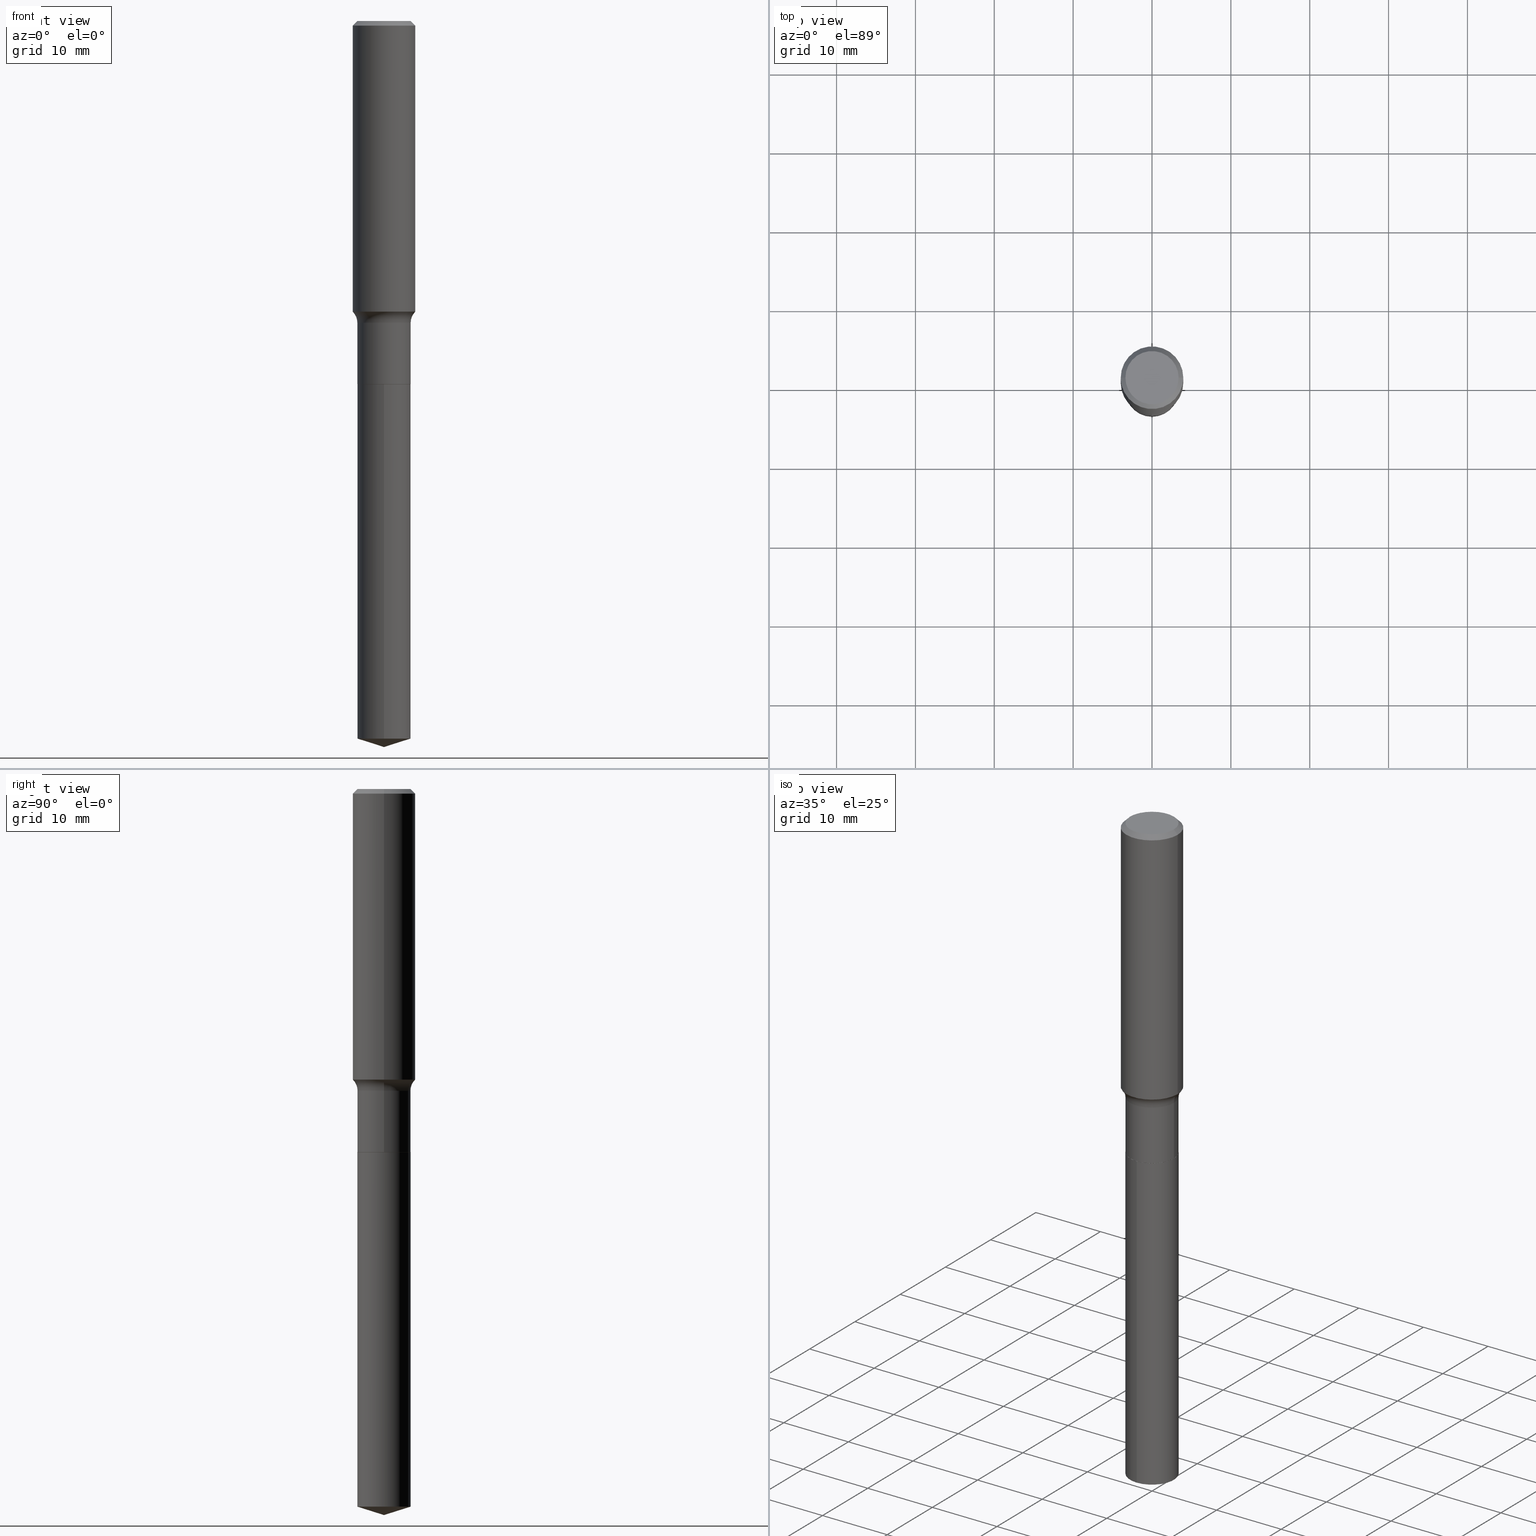
[diagram: canonical four-view strip — front | top / right | iso, engineering-drawing reading convention]
A machine part, canonical four-view strip (front | top / right | iso — engineering-drawing reading convention). The complete STEP part file that produces these views, byte-faithful:
ISO-10303-21;
HEADER;
FILE_DESCRIPTION (( 'STEP AP203' ),
    '1' );
FILE_NAME ('52342.STEP',
    '2024-04-19T13:47:51',
    ( '' ),
    ( '' ),
    'SwSTEP 2.0',
    'SolidWorks 2023',
    '' );
FILE_SCHEMA (( 'CONFIG_CONTROL_DESIGN' ));
ENDSEC;

DATA;
#1 = FACE_OUTER_BOUND ( 'NONE', #3, .T. ) ;
#2 = DIRECTION ( 'NONE',  ( 6.982962677686265922E-15, 1.000000000000000000, -3.491482212722760991E-15 ) ) ;
#3 = EDGE_LOOP ( 'NONE', ( #33, #483, #138 ) ) ;
#4 = DIRECTION ( 'NONE',  ( 7.105427357601001859E-15, 1.000000000000000000, -3.491481338843145583E-15 ) ) ;
#5 = PLANE ( 'NONE',  #395 ) ;
#6 = CONICAL_SURFACE ( 'NONE', #287, 0.1325000000000000067, 0.7853981633975336552 ) ;
#7 = VECTOR ( 'NONE', #278, 39.37007874015748143 ) ;
#8 = CYLINDRICAL_SURFACE ( 'NONE', #378, 0.1329999999999999793 ) ;
#9 = DIRECTION ( 'NONE',  ( 1.000000000000000000, -6.982962677686266711E-15, 4.876176775795935232E-29 ) ) ;
#10 = EDGE_CURVE ( 'NONE', #94, #84, #50, .T. ) ;
#11 = CARTESIAN_POINT ( 'NONE',  ( 0.1329999999999999793, -9.287340361322734252E-16, 6.485315111808593988E-30 ) ) ;
#12 = CLOSED_SHELL ( 'NONE', ( #21, #137, #294, #267, #486, #376, #385, #414, #453, #247, #280, #254 ) ) ;
#13 = DIRECTION ( 'NONE',  ( -2.445468806185136597E-29, 3.491481338843145583E-15, 1.000000000000000000 ) ) ;
#14 = APPROVAL_PERSON_ORGANIZATION ( #36, #44, #25 ) ;
#15 = EDGE_CURVE ( 'NONE', #452, #218, #142, .T. ) ;
#16 = LINE ( 'NONE', #57, #488 ) ;
#17 = APPROVAL_STATUS ( 'not_yet_approved' ) ;
#18 = MECHANICAL_CONTEXT ( 'NONE', #448, 'mechanical' ) ;
#19 = VECTOR ( 'NONE', #382, 39.37007874015748143 ) ;
#20 = VERTEX_POINT ( 'NONE', #471 ) ;
#21 = ADVANCED_FACE ( 'NONE', ( #437 ), #6, .T. ) ;
#22 = ORIENTED_EDGE ( 'NONE', *, *, #183, .T. ) ;
#23 = CARTESIAN_POINT ( 'NONE',  ( 4.433390398733034659E-29, -6.329706519188739286E-15, -1.812900000000000178 ) ) ;
#24 = ORIENTED_EDGE ( 'NONE', *, *, #470, .F. ) ;
#25 = APPROVAL_ROLE ( '' ) ;
#26 = TOROIDAL_SURFACE ( 'NONE', #464, 0.2109999999999999376, 0.07800000000000002764 ) ;
#27 = ORIENTED_EDGE ( 'NONE', *, *, #131, .T. ) ;
#28 = APPLICATION_PROTOCOL_DEFINITION ( 'international standard', 'config_control_design', 1994, #290 ) ;
#29 = EDGE_CURVE ( 'NONE', #145, #20, #58, .T. ) ;
#30 = DIRECTION ( 'NONE',  ( -2.445468195958262557E-29, 3.491482212722760991E-15, 1.000000000000000000 ) ) ;
#31 = SECURITY_CLASSIFICATION_LEVEL ( 'unclassified' ) ;
#32 = DIRECTION ( 'NONE',  ( -2.445468195958262557E-29, 3.491482212722760991E-15, 1.000000000000000000 ) ) ;
#33 = ORIENTED_EDGE ( 'NONE', *, *, #107, .F. ) ;
#34 = CARTESIAN_POINT ( 'NONE',  ( 8.864824442310846764E-29, -1.265661985260730143E-14, -3.625000000000000444 ) ) ;
#35 = FACE_OUTER_BOUND ( 'NONE', #468, .T. ) ;
#36 = PERSON_AND_ORGANIZATION ( #368, #122 ) ;
#37 = CC_DESIGN_PERSON_AND_ORGANIZATION_ASSIGNMENT ( #422, #412, ( #253 ) ) ;
#38 = CYLINDRICAL_SURFACE ( 'NONE', #119, 0.1562500000000000833 ) ;
#39 = VECTOR ( 'NONE', #149, 39.37007874015748143 ) ;
#40 = DIRECTION ( 'NONE',  ( -2.445468806185136597E-29, 3.491481338843145583E-15, 1.000000000000000000 ) ) ;
#41 = CIRCLE ( 'NONE', #341, 0.07800000000000002764 ) ;
#42 = CIRCLE ( 'NONE', #297, 0.1329999999999999793 ) ;
#43 = LOCAL_TIME ( 9, 47, 51.00000000000000000, #257 ) ;
#44 = APPROVAL ( #17, 'UNSPECIFIED' ) ;
#45 = LINE ( 'NONE', #352, #281 ) ;
#46 = CARTESIAN_POINT ( 'NONE',  ( 4.433390398733034659E-29, -6.329706519188739286E-15, -1.812900000000000178 ) ) ;
#47 = CARTESIAN_POINT ( 'NONE',  ( 8.762273246292118594E-29, -1.251020704182614589E-14, -3.583065261079096064 ) ) ;
#48 = ORIENTED_EDGE ( 'NONE', *, *, #131, .F. ) ;
#49 = DIRECTION ( 'NONE',  ( -6.982962677686265922E-15, -1.000000000000000000, 4.108042095735734288E-15 ) ) ;
#50 = CIRCLE ( 'NONE', #243, 0.1329999999999999793 ) ;
#51 = EDGE_LOOP ( 'NONE', ( #27, #64, #237, #383 ) ) ;
#52 = AXIS2_PLACEMENT_3D ( 'NONE', #46, #13, #322 ) ;
#53 = EDGE_CURVE ( 'NONE', #475, #293, #332, .T. ) ;
#54 = VECTOR ( 'NONE', #239, 39.37007874015748143 ) ;
#55 = APPROVAL_PERSON_ORGANIZATION ( #198, #89, #455 ) ;
#56 = DATE_AND_TIME ( #397, #43 ) ;
#57 = CARTESIAN_POINT ( 'NONE',  ( -0.1562500000000000000, 1.009256324509342545E-15, -0.02343750000000014225 ) ) ;
#58 = CIRCLE ( 'NONE', #52, 0.1325000000000000067 ) ;
#59 = CIRCLE ( 'NONE', #479, 0.1562500000000000000 ) ;
#60 = SHAPE_DEFINITION_REPRESENTATION ( #211, #284 ) ;
#61 = EDGE_CURVE ( 'NONE', #179, #308, #473, .T. ) ;
#62 = ORIENTED_EDGE ( 'NONE', *, *, #219, .T. ) ;
#63 = CARTESIAN_POINT ( 'NONE',  ( -0.1328125000000000000, 9.683405275697749214E-16, 3.252968060228529177E-18 ) ) ;
#64 = ORIENTED_EDGE ( 'NONE', *, *, #329, .T. ) ;
#65 =( NAMED_UNIT ( * ) SI_UNIT ( $, .STERADIAN. ) SOLID_ANGLE_UNIT ( ) );
#66 = DIRECTION ( 'NONE',  ( 1.000000000000000000, -6.982962677686267499E-15, 4.876176775795936353E-29 ) ) ;
#67 = VERTEX_POINT ( 'NONE', #185 ) ;
#68 = EDGE_CURVE ( 'NONE', #266, #264, #416, .T. ) ;
#69 = AXIS2_PLACEMENT_3D ( 'NONE', #76, #30, #450 ) ;
#70 = DIRECTION ( 'NONE',  ( -2.445468806185136877E-29, 3.491481338843145188E-15, 1.000000000000000000 ) ) ;
#71 = EDGE_LOOP ( 'NONE', ( #193, #302, #74, #163 ) ) ;
#72 = DATE_TIME_ROLE ( 'creation_date' ) ;
#73 = DIRECTION ( 'NONE',  ( 1.000000000000000000, -6.982962677686269866E-15, 0.000000000000000000 ) ) ;
#74 = ORIENTED_EDGE ( 'NONE', *, *, #358, .F. ) ;
#75 = COORDINATED_UNIVERSAL_TIME_OFFSET ( 5, 0, .BEHIND. ) ;
#76 = CARTESIAN_POINT ( 'NONE',  ( -8.741345211479866169E-28, 1.248033081978907119E-13, 35.74507874015748143 ) ) ;
#77 = VECTOR ( 'NONE', #489, 39.37007874015748143 ) ;
#78 = CARTESIAN_POINT ( 'NONE',  ( -0.1329999999999999793, 9.450218385609331005E-16, -6.542183670039024169E-30 ) ) ;
#79 = EDGE_CURVE ( 'NONE', #179, #84, #224, .T. ) ;
#80 = LOCAL_TIME ( 9, 47, 51.00000000000000000, #178 ) ;
#81 = VERTEX_POINT ( 'NONE', #342 ) ;
#82 = DIRECTION ( 'NONE',  ( -2.445468195958262557E-29, 3.491482212722760991E-15, 1.000000000000000000 ) ) ;
#83 = DIRECTION ( 'NONE',  ( 1.000000000000000000, -6.982962677686266711E-15, 4.876176775795935232E-29 ) ) ;
#84 = VERTEX_POINT ( 'NONE', #310 ) ;
#85 = PERSON_AND_ORGANIZATION ( #368, #122 ) ;
#86 = LINE ( 'NONE', #250, #54 ) ;
#87 = DIRECTION ( 'NONE',  ( 2.445468195958262277E-29, -3.491482212722760991E-15, -1.000000000000000000 ) ) ;
#88 = EDGE_LOOP ( 'NONE', ( #428, #491, #114, #156 ) ) ;
#89 = APPROVAL ( #309, 'UNSPECIFIED' ) ;
#90 = CARTESIAN_POINT ( 'NONE',  ( -9.287340361322290517E-16, -0.1330000000000063354, -1.812899999999999734 ) ) ;
#91 = CIRCLE ( 'NONE', #363, 0.1330000000000000071 ) ;
#92 = LINE ( 'NONE', #317, #19 ) ;
#93 = CARTESIAN_POINT ( 'NONE',  ( 0.1329999999999999793, -7.256694814651591602E-15, -1.812400000000000233 ) ) ;
#94 = VERTEX_POINT ( 'NONE', #303 ) ;
#95 = PRODUCT ( '52342', '52342', '', ( #18 ) ) ;
#96 = CIRCLE ( 'NONE', #151, 0.07800000000000002764 ) ;
#97 = LOCAL_TIME ( 9, 47, 51.00000000000000000, #75 ) ;
#98 = DIRECTION ( 'NONE',  ( -6.982962677686265922E-15, -1.000000000000000000, 4.108042095735734288E-15 ) ) ;
#99 = PERSON_AND_ORGANIZATION ( #368, #122 ) ;
#100 = EDGE_LOOP ( 'NONE', ( #225, #252, #340, #216 ) ) ;
#101 = EDGE_CURVE ( 'NONE', #81, #67, #230, .T. ) ;
#102 = VERTEX_POINT ( 'NONE', #270 ) ;
#103 = AXIS2_PLACEMENT_3D ( 'NONE', #133, #324, #206 ) ;
#104 = CONICAL_SURFACE ( 'NONE', #296, 0.1562500000000000000, 0.7853981633974452814 ) ;
#105 = DIRECTION ( 'NONE',  ( -2.445468195958262557E-29, 3.491482212722760991E-15, 1.000000000000000000 ) ) ;
#106 = ORIENTED_EDGE ( 'NONE', *, *, #398, .T. ) ;
#107 = EDGE_CURVE ( 'NONE', #266, #447, #381, .T. ) ;
#108 = ORIENTED_EDGE ( 'NONE', *, *, #438, .F. ) ;
#109 = CARTESIAN_POINT ( 'NONE',  ( -0.1325000000000000067, -5.385588167132495686E-15, -1.812900000000000178 ) ) ;
#110 = ORIENTED_EDGE ( 'NONE', *, *, #444, .F. ) ;
#111 = AXIS2_PLACEMENT_3D ( 'NONE', #366, #295, #98 ) ;
#112 = DIRECTION ( 'NONE',  ( -6.982962677686265922E-15, -1.000000000000000000, 4.108042095735734288E-15 ) ) ;
#113 = FACE_OUTER_BOUND ( 'NONE', #432, .T. ) ;
#114 = ORIENTED_EDGE ( 'NONE', *, *, #143, .T. ) ;
#115 = DATE_TIME_ROLE ( 'classification_date' ) ;
#116 = ADVANCED_FACE ( 'NONE', ( #1 ), #327, .T. ) ;
#117 = DIRECTION ( 'NONE',  ( -2.445468806185136597E-29, 3.491481338843145583E-15, 1.000000000000000000 ) ) ;
#118 = EDGE_LOOP ( 'NONE', ( #139, #177, #62, #304 ) ) ;
#119 = AXIS2_PLACEMENT_3D ( 'NONE', #425, #196, #83 ) ;
#120 = DIRECTION ( 'NONE',  ( 1.000000000000000000, -6.982962677686266711E-15, 0.000000000000000000 ) ) ;
#121 = FACE_OUTER_BOUND ( 'NONE', #88, .T. ) ;
#122 = ORGANIZATION ( 'UNSPECIFIED', 'UNSPECIFIED', '' ) ;
#123 = CARTESIAN_POINT ( 'NONE',  ( 5.731567514496448931E-31, -8.183159387913672688E-17, -0.02343750000000014225 ) ) ;
#124 = FACE_OUTER_BOUND ( 'NONE', #336, .T. ) ;
#125 = EDGE_CURVE ( 'NONE', #447, #264, #191, .T. ) ;
#126 = DIRECTION ( 'NONE',  ( -2.445468195958262557E-29, 3.491482212722760991E-15, 1.000000000000000000 ) ) ;
#127 = CARTESIAN_POINT ( 'NONE',  ( 3.685321490921001874E-29, -5.261662377636621593E-15, -1.507000000000000339 ) ) ;
#128 = DIRECTION ( 'NONE',  ( 1.000000000000000000, -6.982962677686268288E-15, 0.000000000000000000 ) ) ;
#129 = DIRECTION ( 'NONE',  ( -2.445468806185136597E-29, 3.491481338843145583E-15, 1.000000000000000000 ) ) ;
#130 = DIRECTION ( 'NONE',  ( -2.445468195958262557E-29, 3.491482212722760991E-15, 1.000000000000000000 ) ) ;
#131 = EDGE_CURVE ( 'NONE', #20, #145, #260, .T. ) ;
#132 = DIRECTION ( 'NONE',  ( 0.7071067811866078578, -2.468850131082888544E-15, 0.7071067811864871766 ) ) ;
#133 = CARTESIAN_POINT ( 'NONE',  ( -7.955031918821650812E-47, 1.135767727816383927E-32, 3.252968060235157842E-18 ) ) ;
#134 = AXIS2_PLACEMENT_3D ( 'NONE', #380, #236, #313 ) ;
#135 = DIRECTION ( 'NONE',  ( 1.000000000000000000, 0.000000000000000000, 0.000000000000000000 ) ) ;
#136 = CC_DESIGN_APPROVAL ( #89, ( #253 ) ) ;
#137 = ADVANCED_FACE ( 'NONE', ( #195 ), #104, .T. ) ;
#138 = ORIENTED_EDGE ( 'NONE', *, *, #125, .F. ) ;
#139 = ORIENTED_EDGE ( 'NONE', *, *, #335, .F. ) ;
#140 = APPROVAL_DATE_TIME ( #400, #44 ) ;
#141 = EDGE_LOOP ( 'NONE', ( #445, #197, #181, #298 ) ) ;
#142 = CIRCLE ( 'NONE', #103, 0.1328125000000000000 ) ;
#143 = EDGE_CURVE ( 'NONE', #475, #67, #312, .T. ) ;
#144 = PLANE ( 'NONE',  #333 ) ;
#145 = VERTEX_POINT ( 'NONE', #109 ) ;
#146 = PERSON_AND_ORGANIZATION_ROLE ( 'design_owner' ) ;
#147 = EDGE_LOOP ( 'NONE', ( #262, #220, #108 ) ) ;
#148 = CARTESIAN_POINT ( 'NONE',  ( 4.432167664329942418E-29, -6.327960778519318572E-15, -1.812400000000000233 ) ) ;
#149 = DIRECTION ( 'NONE',  ( 6.776566513254258926E-15, 0.9537169507482290420, 0.3007057995042663467 ) ) ;
#150 = MANIFOLD_SOLID_BREP ( 'Body-Move/Copy2[2]', #12 ) ;
#151 = AXIS2_PLACEMENT_3D ( 'NONE', #166, #463, #128 ) ;
#152 = FACE_OUTER_BOUND ( 'NONE', #71, .T. ) ;
#153 = ADVANCED_FACE ( 'NONE', ( #152 ), #228, .T. ) ;
#154 = MANIFOLD_SOLID_BREP ( 'Body-Move/Copy2[1]', #286 ) ;
#155 = DIRECTION ( 'NONE',  ( -1.000000000000000000, 6.982962677686266711E-15, 0.000000000000000000 ) ) ;
#156 = ORIENTED_EDGE ( 'NONE', *, *, #101, .F. ) ;
#157 = DATE_AND_TIME ( #305, #410 ) ;
#158 = DIRECTION ( 'NONE',  ( -2.445468806185136597E-29, 3.491481338843145583E-15, 1.000000000000000000 ) ) ;
#159 = DIRECTION ( 'NONE',  ( -2.445468806185136597E-29, 3.491481338843145583E-15, 1.000000000000000000 ) ) ;
#160 = EDGE_CURVE ( 'NONE', #293, #84, #41, .T. ) ;
#161 = AXIS2_PLACEMENT_3D ( 'NONE', #47, #130, #282 ) ;
#162 = FACE_OUTER_BOUND ( 'NONE', #147, .T. ) ;
#163 = ORIENTED_EDGE ( 'NONE', *, *, #364, .F. ) ;
#164 = CARTESIAN_POINT ( 'NONE',  ( 0.000000000000000000, 0.000000000000000000, 0.000000000000000000 ) ) ;
#165 = DIRECTION ( 'NONE',  ( 1.000000000000000000, -6.982962677686268288E-15, 4.876286914311434227E-29 ) ) ;
#166 = CARTESIAN_POINT ( 'NONE',  ( 0.2109999999999999376, -6.735067502628422670E-15, -1.507000000000000339 ) ) ;
#167 = CARTESIAN_POINT ( 'NONE',  ( 3.685321490921001874E-29, -5.261662377636621593E-15, -1.507000000000000339 ) ) ;
#168 = AXIS2_PLACEMENT_3D ( 'NONE', #466, #276, #9 ) ;
#169 = EDGE_CURVE ( 'NONE', #67, #81, #59, .T. ) ;
#170 = DIRECTION ( 'NONE',  ( -2.445468806185136597E-29, 3.491481338843145583E-15, 1.000000000000000000 ) ) ;
#171 = DIRECTION ( 'NONE',  ( -1.000000000000000000, 6.982962677686265922E-15, -4.876176775795935793E-29 ) ) ;
#172 = DIRECTION ( 'NONE',  ( 1.000000000000000000, -6.982962677686269077E-15, 0.000000000000000000 ) ) ;
#173 = CALENDAR_DATE ( 2024, 19, 4 ) ;
#174 = CC_DESIGN_PERSON_AND_ORGANIZATION_ASSIGNMENT ( #259, #362, ( #275 ) ) ;
#175 = CONICAL_SURFACE ( 'NONE', #223, 0.1325000000000000067, 0.7853981633975336552 ) ;
#176 = ORIENTED_EDGE ( 'NONE', *, *, #183, .F. ) ;
#177 = ORIENTED_EDGE ( 'NONE', *, *, #15, .F. ) ;
#178 = COORDINATED_UNIVERSAL_TIME_OFFSET ( 5, 0, .BEHIND. ) ;
#179 = VERTEX_POINT ( 'NONE', #356 ) ;
#180 = CYLINDRICAL_SURFACE ( 'NONE', #320, 0.1329999999999999793 ) ;
#181 = ORIENTED_EDGE ( 'NONE', *, *, #10, .F. ) ;
#182 = AXIS2_PLACEMENT_3D ( 'NONE', #399, #272, #231 ) ;
#183 = EDGE_CURVE ( 'NONE', #218, #452, #201, .T. ) ;
#184 = ORIENTED_EDGE ( 'NONE', *, *, #219, .F. ) ;
#185 = CARTESIAN_POINT ( 'NONE',  ( 0.1562500000000000000, -1.172919512267615999E-15, -0.02343750000000014225 ) ) ;
#186 = EDGE_LOOP ( 'NONE', ( #210, #478, #373, #24 ) ) ;
#187 = CALENDAR_DATE ( 2024, 19, 4 ) ;
#188 = CARTESIAN_POINT ( 'NONE',  ( 5.731567514496448931E-31, -8.183159387913672688E-17, -0.02343750000000014225 ) ) ;
#189 = EDGE_CURVE ( 'NONE', #264, #102, #86, .T. ) ;
#190 = VERTEX_POINT ( 'NONE', #232 ) ;
#191 = CIRCLE ( 'NONE', #319, 0.1330000000000000071 ) ;
#192 = DIRECTION ( 'NONE',  ( 1.000000000000000000, -6.982962677686269866E-15, 0.000000000000000000 ) ) ;
#193 = ORIENTED_EDGE ( 'NONE', *, *, #125, .T. ) ;
#194 = COORDINATED_UNIVERSAL_TIME_OFFSET ( 5, 0, .BEHIND. ) ;
#195 = FACE_OUTER_BOUND ( 'NONE', #331, .T. ) ;
#196 = DIRECTION ( 'NONE',  ( -2.445468806185136597E-29, 3.491481338843145583E-15, 1.000000000000000000 ) ) ;
#197 = ORIENTED_EDGE ( 'NONE', *, *, #79, .T. ) ;
#198 = PERSON_AND_ORGANIZATION ( #368, #122 ) ;
#199 = CC_DESIGN_PERSON_AND_ORGANIZATION_ASSIGNMENT ( #85, #238, ( #389 ) ) ;
#200 = CARTESIAN_POINT ( 'NONE',  ( -0.1562500000000001665, -3.957467609853819764E-15, -1.451444284722451794 ) ) ;
#201 = CIRCLE ( 'NONE', #274, 0.1328125000000000000 ) ;
#202 = LINE ( 'NONE', #90, #409 ) ;
#203 = DIRECTION ( 'NONE',  ( 1.000000000000000000, -6.982962677686269866E-15, 0.000000000000000000 ) ) ;
#204 = DIRECTION ( 'NONE',  ( -2.445468806185136597E-29, 3.491481338843145583E-15, 1.000000000000000000 ) ) ;
#205 = DIRECTION ( 'NONE',  ( 1.000000000000000000, -6.982962677686269077E-15, 0.000000000000000000 ) ) ;
#206 = DIRECTION ( 'NONE',  ( 1.000000000000000000, -6.982962677686268288E-15, 4.876286914311434227E-29 ) ) ;
#207 = ADVANCED_FACE ( 'NONE', ( #347 ), #240, .T. ) ;
#208 = DIRECTION ( 'NONE',  ( 1.000000000000000000, -6.982962677686269077E-15, 0.000000000000000000 ) ) ;
#209 = TOROIDAL_SURFACE ( 'NONE', #372, 0.2109999999999999376, 0.07800000000000002764 ) ;
#210 = ORIENTED_EDGE ( 'NONE', *, *, #189, .F. ) ;
#211 = PRODUCT_DEFINITION_SHAPE ( 'NONE', 'NONE',  #275 ) ;
#212 = ORIENTED_EDGE ( 'NONE', *, *, #358, .T. ) ;
#213 = APPROVAL ( #446, 'UNSPECIFIED' ) ;
#214 = PLANE ( 'NONE',  #388 ) ;
#215 = CONICAL_SURFACE ( 'NONE', #355, 0.1562500000000000000, 0.7853981633974452814 ) ;
#216 = ORIENTED_EDGE ( 'NONE', *, *, #421, .F. ) ;
#217 = CARTESIAN_POINT ( 'NONE',  ( 0.000000000000000000, 0.000000000000000000, 0.000000000000000000 ) ) ;
#218 = VERTEX_POINT ( 'NONE', #469 ) ;
#219 = EDGE_CURVE ( 'NONE', #452, #81, #16, .T. ) ;
#220 = ORIENTED_EDGE ( 'NONE', *, *, #107, .T. ) ;
#221 = ORIENTED_EDGE ( 'NONE', *, *, #345, .T. ) ;
#222 = DIRECTION ( 'NONE',  ( 0.000000000000000000, 0.000000000000000000, 1.000000000000000000 ) ) ;
#223 = AXIS2_PLACEMENT_3D ( 'NONE', #328, #307, #192 ) ;
#224 = LINE ( 'NONE', #78, #325 ) ;
#225 = ORIENTED_EDGE ( 'NONE', *, *, #311, .F. ) ;
#226 = PERSON_AND_ORGANIZATION_ROLE ( 'design_supplier' ) ;
#227 = EDGE_CURVE ( 'NONE', #20, #308, #289, .T. ) ;
#228 = CYLINDRICAL_SURFACE ( 'NONE', #417, 0.1330000000000000071 ) ;
#229 = DIRECTION ( 'NONE',  ( 1.000000000000000000, -6.982962677686269077E-15, 0.000000000000000000 ) ) ;
#230 = CIRCLE ( 'NONE', #326, 0.1562500000000000000 ) ;
#231 = DIRECTION ( 'NONE',  ( 1.000000000000000000, -6.982962677686269077E-15, 0.000000000000000000 ) ) ;
#232 = CARTESIAN_POINT ( 'NONE',  ( -9.287340361322290517E-16, -0.1330000000000063354, -1.812899999999999734 ) ) ;
#233 = ORIENTED_EDGE ( 'NONE', *, *, #160, .F. ) ;
#234 = CC_DESIGN_DATE_AND_TIME_ASSIGNMENT ( #273, #115, ( #389 ) ) ;
#235 = DIRECTION ( 'NONE',  ( -6.982962677686265922E-15, -1.000000000000000000, 4.108042095735734288E-15 ) ) ;
#236 = DIRECTION ( 'NONE',  ( -2.445468195958262557E-29, 3.491482212722760991E-15, 1.000000000000000000 ) ) ;
#237 = ORIENTED_EDGE ( 'NONE', *, *, #465, .F. ) ;
#238 = PERSON_AND_ORGANIZATION_ROLE ( 'classification_officer' ) ;
#239 = DIRECTION ( 'NONE',  ( -2.445468195958262557E-29, 3.491482212722760991E-15, 1.000000000000000000 ) ) ;
#240 = CYLINDRICAL_SURFACE ( 'NONE', #111, 0.1330000000000000071 ) ;
#241 = CARTESIAN_POINT ( 'NONE',  ( 4.433390398733034659E-29, -6.329706519188739286E-15, -1.812900000000000178 ) ) ;
#242 = DIMENSIONAL_EXPONENTS ( 1.000000000000000000, 0.000000000000000000, 0.000000000000000000, 0.000000000000000000, 0.000000000000000000, 0.000000000000000000, 0.000000000000000000 ) ;
#243 = AXIS2_PLACEMENT_3D ( 'NONE', #127, #391, #172 ) ;
#244 = CIRCLE ( 'NONE', #349, 0.1562500000000001388 ) ;
#245 = CC_DESIGN_SECURITY_CLASSIFICATION ( #389, ( #253 ) ) ;
#246 = DIRECTION ( 'NONE',  ( -2.438088387897960049E-29, 3.491481338843145188E-15, 1.000000000000000000 ) ) ;
#247 = ADVANCED_FACE ( 'NONE', ( #256 ), #214, .F. ) ;
#248 = DIRECTION ( 'NONE',  ( -2.445468806185136597E-29, 3.491481338843145583E-15, 1.000000000000000000 ) ) ;
#249 = DIRECTION ( 'NONE',  ( -2.445468806185136597E-29, 3.491481338843145583E-15, 1.000000000000000000 ) ) ;
#250 = CARTESIAN_POINT ( 'NONE',  ( 9.450218385609774739E-16, 0.1329999999999936788, -1.812900000000000844 ) ) ;
#251 = LENGTH_MEASURE_WITH_UNIT ( LENGTH_MEASURE( 0.02539999999999999897 ), #467 );
#252 = ORIENTED_EDGE ( 'NONE', *, *, #160, .T. ) ;
#253 = PRODUCT_DEFINITION_FORMATION_WITH_SPECIFIED_SOURCE ( 'ANY', '', #95, .NOT_KNOWN. ) ;
#254 = ADVANCED_FACE ( 'NONE', ( #285 ), #175, .T. ) ;
#255 = DESIGN_CONTEXT ( 'detailed design', #290, 'design' ) ;
#256 = FACE_OUTER_BOUND ( 'NONE', #370, .T. ) ;
#257 = COORDINATED_UNIVERSAL_TIME_OFFSET ( 5, 0, .BEHIND. ) ;
#258 = ORIENTED_EDGE ( 'NONE', *, *, #53, .F. ) ;
#259 = PERSON_AND_ORGANIZATION ( #368, #122 ) ;
#260 = CIRCLE ( 'NONE', #434, 0.1325000000000000067 ) ;
#261 = ORIENTED_EDGE ( 'NONE', *, *, #79, .F. ) ;
#262 = ORIENTED_EDGE ( 'NONE', *, *, #68, .F. ) ;
#263 = CARTESIAN_POINT ( 'NONE',  ( 0.000000000000000000, 0.000000000000000000, 0.000000000000000000 ) ) ;
#264 = VERTEX_POINT ( 'NONE', #338 ) ;
#265 = DIRECTION ( 'NONE',  ( -6.659769872151633666E-15, -0.9537169507482269326, 0.3007057995042729526 ) ) ;
#266 = VERTEX_POINT ( 'NONE', #343 ) ;
#267 = ADVANCED_FACE ( 'NONE', ( #454 ), #209, .F. ) ;
#268 = CIRCLE ( 'NONE', #161, 0.1330000000000000071 ) ;
#269 =( GEOMETRIC_REPRESENTATION_CONTEXT ( 3 ) GLOBAL_UNCERTAINTY_ASSIGNED_CONTEXT ( ( #360 ) ) GLOBAL_UNIT_ASSIGNED_CONTEXT ( ( #396, #359, #65 ) ) REPRESENTATION_CONTEXT ( 'NONE', 'WORKASPACE' ) );
#270 = CARTESIAN_POINT ( 'NONE',  ( 9.450218385610212557E-16, 0.1329999999999936788, -1.812900000000000844 ) ) ;
#271 = CARTESIAN_POINT ( 'NONE',  ( 4.432167664329942418E-29, -6.327960778519318572E-15, -1.812400000000000233 ) ) ;
#272 = DIRECTION ( 'NONE',  ( -2.445468806185136597E-29, 3.491481338843145583E-15, 1.000000000000000000 ) ) ;
#273 = DATE_AND_TIME ( #187, #451 ) ;
#274 = AXIS2_PLACEMENT_3D ( 'NONE', #277, #430, #165 ) ;
#275 = PRODUCT_DEFINITION ( 'UNKNOWN', '', #253, #255 ) ;
#276 = DIRECTION ( 'NONE',  ( -2.445468806185136597E-29, 3.491481338843145583E-15, 1.000000000000000000 ) ) ;
#277 = CARTESIAN_POINT ( 'NONE',  ( -7.955031918821650812E-47, 1.135767727816383927E-32, 3.252968060235157842E-18 ) ) ;
#278 = DIRECTION ( 'NONE',  ( -2.445468806185136877E-29, 3.491481338843145188E-15, 1.000000000000000000 ) ) ;
#279 = DIRECTION ( 'NONE',  ( 1.000000000000000000, -6.982962677686267499E-15, 4.876176775795936353E-29 ) ) ;
#280 = ADVANCED_FACE ( 'NONE', ( #113 ), #144, .F. ) ;
#281 = VECTOR ( 'NONE', #318, 39.37007874015748143 ) ;
#282 = DIRECTION ( 'NONE',  ( -6.982962677686265922E-15, -1.000000000000000000, 4.108042095735734288E-15 ) ) ;
#283 = DIRECTION ( 'NONE',  ( 1.000000000000000000, -6.982962677686265922E-15, 4.876176775795935793E-29 ) ) ;
#284 = ADVANCED_BREP_SHAPE_REPRESENTATION ( '52342', ( #154, #150, #426 ), #269 ) ;
#285 = FACE_OUTER_BOUND ( 'NONE', #477, .T. ) ;
#286 = CLOSED_SHELL ( 'NONE', ( #153, #116, #323, #207, #350 ) ) ;
#287 = AXIS2_PLACEMENT_3D ( 'NONE', #387, #462, #203 ) ;
#288 = CIRCLE ( 'NONE', #441, 0.1329999999999999793 ) ;
#289 = LINE ( 'NONE', #403, #314 ) ;
#290 = APPLICATION_CONTEXT ( 'configuration controlled 3d designs of mechanical parts and assemblies' ) ;
#291 = ORIENTED_EDGE ( 'NONE', *, *, #29, .T. ) ;
#292 = PERSON_AND_ORGANIZATION ( #368, #122 ) ;
#293 = VERTEX_POINT ( 'NONE', #200 ) ;
#294 = ADVANCED_FACE ( 'NONE', ( #124 ), #38, .T. ) ;
#295 = DIRECTION ( 'NONE',  ( -2.445468195958262557E-29, 3.491482212722760991E-15, 1.000000000000000000 ) ) ;
#296 = AXIS2_PLACEMENT_3D ( 'NONE', #492, #339, #155 ) ;
#297 = AXIS2_PLACEMENT_3D ( 'NONE', #148, #249, #208 ) ;
#298 = ORIENTED_EDGE ( 'NONE', *, *, #345, .F. ) ;
#299 = CARTESIAN_POINT ( 'NONE',  ( 4.433390398733034659E-29, -6.329706519188739286E-15, -1.812900000000000178 ) ) ;
#300 = ORIENTED_EDGE ( 'NONE', *, *, #470, .T. ) ;
#301 = CC_DESIGN_DATE_AND_TIME_ASSIGNMENT ( #344, #72, ( #275 ) ) ;
#302 = ORIENTED_EDGE ( 'NONE', *, *, #189, .T. ) ;
#303 = CARTESIAN_POINT ( 'NONE',  ( 0.1329999999999999793, -6.190396413768894624E-15, -1.507000000000000339 ) ) ;
#304 = ORIENTED_EDGE ( 'NONE', *, *, #101, .T. ) ;
#305 = CALENDAR_DATE ( 2024, 19, 4 ) ;
#306 = CARTESIAN_POINT ( 'NONE',  ( -0.2109999999999999376, -3.762417205182810447E-15, -1.507000000000000339 ) ) ;
#307 = DIRECTION ( 'NONE',  ( -2.445468806185136597E-29, 3.491481338843145583E-15, 1.000000000000000000 ) ) ;
#308 = VERTEX_POINT ( 'NONE', #93 ) ;
#309 = APPROVAL_STATUS ( 'not_yet_approved' ) ;
#310 = CARTESIAN_POINT ( 'NONE',  ( -0.1329999999999999793, -4.849789739517036785E-15, -1.507000000000000339 ) ) ;
#311 = EDGE_CURVE ( 'NONE', #293, #475, #244, .T. ) ;
#312 = LINE ( 'NONE', #459, #77 ) ;
#313 = DIRECTION ( 'NONE',  ( -6.982962677686266711E-15, -1.000000000000000000, 3.500519750498693388E-15 ) ) ;
#314 = VECTOR ( 'NONE', #132, 39.37007874015748143 ) ;
#315 = APPROVAL_PERSON_ORGANIZATION ( #292, #213, #406 ) ;
#316 = CARTESIAN_POINT ( 'NONE',  ( 3.549461722204453931E-29, -5.067690634478977882E-15, -1.451444284722451794 ) ) ;
#317 = CARTESIAN_POINT ( 'NONE',  ( 0.1562500000000000000, -1.153784406030938435E-15, -0.02343750000000014225 ) ) ;
#318 = DIRECTION ( 'NONE',  ( -2.445468806185136877E-29, 3.491481338843145188E-15, 1.000000000000000000 ) ) ;
#319 = AXIS2_PLACEMENT_3D ( 'NONE', #415, #32, #112 ) ;
#320 = AXIS2_PLACEMENT_3D ( 'NONE', #263, #170, #66 ) ;
#321 = DIRECTION ( 'NONE',  ( 1.000000000000000000, -6.982962677686265922E-15, 4.883557194083112901E-29 ) ) ;
#322 = DIRECTION ( 'NONE',  ( 1.000000000000000000, -6.982962677686269866E-15, 0.000000000000000000 ) ) ;
#323 = ADVANCED_FACE ( 'NONE', ( #162 ), #449, .T. ) ;
#324 = DIRECTION ( 'NONE',  ( -2.445468806185136597E-29, 3.491481338843145583E-15, 1.000000000000000000 ) ) ;
#325 = VECTOR ( 'NONE', #70, 39.37007874015748143 ) ;
#326 = AXIS2_PLACEMENT_3D ( 'NONE', #188, #158, #120 ) ;
#327 = CONICAL_SURFACE ( 'NONE', #69, 124.8659371009154597, 1.265363707695892570 ) ;
#328 = CARTESIAN_POINT ( 'NONE',  ( 4.433390398733034659E-29, -6.329706519188739286E-15, -1.812900000000000178 ) ) ;
#329 = EDGE_CURVE ( 'NONE', #145, #179, #346, .T. ) ;
#330 = ORIENTED_EDGE ( 'NONE', *, *, #227, .T. ) ;
#331 = EDGE_LOOP ( 'NONE', ( #176, #405, #443, #184 ) ) ;
#332 = CIRCLE ( 'NONE', #182, 0.1562500000000001388 ) ;
#333 = AXIS2_PLACEMENT_3D ( 'NONE', #299, #246, #283 ) ;
#334 = ORIENTED_EDGE ( 'NONE', *, *, #421, .T. ) ;
#335 = EDGE_CURVE ( 'NONE', #218, #67, #92, .T. ) ;
#336 = EDGE_LOOP ( 'NONE', ( #374, #106, #402, #440 ) ) ;
#337 = CALENDAR_DATE ( 2024, 19, 4 ) ;
#338 = CARTESIAN_POINT ( 'NONE',  ( 9.450218385610204668E-16, 0.1329999999999874338, -3.583065261079096508 ) ) ;
#339 = DIRECTION ( 'NONE',  ( 2.445468806185136597E-29, -3.491481338843145583E-15, -1.000000000000000000 ) ) ;
#340 = ORIENTED_EDGE ( 'NONE', *, *, #444, .T. ) ;
#341 = AXIS2_PLACEMENT_3D ( 'NONE', #306, #4, #408 ) ;
#342 = CARTESIAN_POINT ( 'NONE',  ( -0.1562500000000000000, -1.464538089553900024E-15, -0.02343750000000014225 ) ) ;
#343 = CARTESIAN_POINT ( 'NONE',  ( 8.864822210348703487E-29, -1.265662302112001091E-14, -3.625000000000000444 ) ) ;
#344 = DATE_AND_TIME ( #337, #97 ) ;
#345 = EDGE_CURVE ( 'NONE', #308, #94, #431, .T. ) ;
#346 = LINE ( 'NONE', #461, #474 ) ;
#347 = FACE_OUTER_BOUND ( 'NONE', #186, .T. ) ;
#348 = DIRECTION ( 'NONE',  ( -0.7071067811866078578, 7.493145998870571886E-15, 0.7071067811864871766 ) ) ;
#349 = AXIS2_PLACEMENT_3D ( 'NONE', #316, #40, #460 ) ;
#350 = ADVANCED_FACE ( 'NONE', ( #35 ), #5, .F. ) ;
#351 = DIRECTION ( 'NONE',  ( -2.445468195958262557E-29, 3.491482212722760991E-15, 1.000000000000000000 ) ) ;
#352 = CARTESIAN_POINT ( 'NONE',  ( -0.1562500000000000833, 1.110223024625157132E-15, -7.685836078523293962E-30 ) ) ;
#353 = CARTESIAN_POINT ( 'NONE',  ( -9.287340361321856644E-16, -0.1330000000000124971, -3.583065261079095620 ) ) ;
#354 = EDGE_LOOP ( 'NONE', ( #233, #258, #334, #439 ) ) ;
#355 = AXIS2_PLACEMENT_3D ( 'NONE', #407, #367, #436 ) ;
#356 = CARTESIAN_POINT ( 'NONE',  ( -0.1329999999999999793, -4.849789739517036785E-15, -1.812400000000000233 ) ) ;
#357 = FACE_OUTER_BOUND ( 'NONE', #141, .T. ) ;
#358 = EDGE_CURVE ( 'NONE', #190, #102, #91, .T. ) ;
#359 =( NAMED_UNIT ( * ) PLANE_ANGLE_UNIT ( ) SI_UNIT ( $, .RADIAN. ) );
#360 = UNCERTAINTY_MEASURE_WITH_UNIT (LENGTH_MEASURE( 1.000000000000000082E-05 ), #396, 'distance_accuracy_value', 'NONE');
#361 = DIRECTION ( 'NONE',  ( 2.438088387897960049E-29, -3.491481338843145188E-15, -1.000000000000000000 ) ) ;
#362 = PERSON_AND_ORGANIZATION_ROLE ( 'creator' ) ;
#363 = AXIS2_PLACEMENT_3D ( 'NONE', #241, #126, #386 ) ;
#364 = EDGE_CURVE ( 'NONE', #447, #190, #202, .T. ) ;
#365 = ORIENTED_EDGE ( 'NONE', *, *, #29, .F. ) ;
#366 = CARTESIAN_POINT ( 'NONE',  ( 4.433390398733034659E-29, -6.329706519188739286E-15, -1.812900000000000178 ) ) ;
#367 = DIRECTION ( 'NONE',  ( 2.445468806185136597E-29, -3.491481338843145583E-15, -1.000000000000000000 ) ) ;
#368 = PERSON ( 'UNSPECIFIED', 'UNSPECIFIED', 'UNSPECIFIED', ('UNSPECIFIED'), ('UNSPECIFIED'), ('UNSPECIFIED') ) ;
#369 = CARTESIAN_POINT ( 'NONE',  ( -3.977515959410825406E-47, 5.678838639081919634E-33, 1.626484030117578921E-18 ) ) ;
#370 = EDGE_LOOP ( 'NONE', ( #377, #22 ) ) ;
#371 = APPLICATION_PROTOCOL_DEFINITION ( 'international standard', 'config_control_design', 1994, #448 ) ;
#372 = AXIS2_PLACEMENT_3D ( 'NONE', #456, #117, #481 ) ;
#373 = ORIENTED_EDGE ( 'NONE', *, *, #364, .T. ) ;
#374 = ORIENTED_EDGE ( 'NONE', *, *, #53, .T. ) ;
#375 = CARTESIAN_POINT ( 'NONE',  ( 4.433390398733034659E-29, -6.329706519188739286E-15, -1.812900000000000178 ) ) ;
#376 = ADVANCED_FACE ( 'NONE', ( #392 ), #8, .T. ) ;
#377 = ORIENTED_EDGE ( 'NONE', *, *, #15, .T. ) ;
#378 = AXIS2_PLACEMENT_3D ( 'NONE', #164, #159, #279 ) ;
#379 = CARTESIAN_POINT ( 'NONE',  ( 8.864822210348702366E-29, -1.265662302112001091E-14, -3.625000000000000444 ) ) ;
#380 = CARTESIAN_POINT ( 'NONE',  ( -8.741345211479866169E-28, 1.248033081978907119E-13, 35.74507874015748143 ) ) ;
#381 = LINE ( 'NONE', #379, #401 ) ;
#382 = DIRECTION ( 'NONE',  ( 0.7071067811865453523, -7.319954787623248157E-15, -0.7071067811865496822 ) ) ;
#383 = ORIENTED_EDGE ( 'NONE', *, *, #227, .F. ) ;
#384 = APPROVAL_DATE_TIME ( #157, #89 ) ;
#385 = ADVANCED_FACE ( 'NONE', ( #390 ), #26, .F. ) ;
#386 = DIRECTION ( 'NONE',  ( -6.982962677686265922E-15, -1.000000000000000000, 4.108042095735734288E-15 ) ) ;
#387 = CARTESIAN_POINT ( 'NONE',  ( 4.433390398733034659E-29, -6.329706519188739286E-15, -1.812900000000000178 ) ) ;
#388 = AXIS2_PLACEMENT_3D ( 'NONE', #369, #361, #171 ) ;
#389 = SECURITY_CLASSIFICATION ( '', '', #31 ) ;
#390 = FACE_OUTER_BOUND ( 'NONE', #354, .T. ) ;
#391 = DIRECTION ( 'NONE',  ( -2.445468806185136597E-29, 3.491481338843145583E-15, 1.000000000000000000 ) ) ;
#392 = FACE_OUTER_BOUND ( 'NONE', #411, .T. ) ;
#393 = FACE_OUTER_BOUND ( 'NONE', #118, .T. ) ;
#394 = PRODUCT_RELATED_PRODUCT_CATEGORY ( 'detail', '', ( #95 ) ) ;
#395 = AXIS2_PLACEMENT_3D ( 'NONE', #424, #87, #2 ) ;
#396 =( CONVERSION_BASED_UNIT ( 'INCH', #251 ) LENGTH_UNIT ( ) NAMED_UNIT ( #242 ) );
#397 = CALENDAR_DATE ( 2024, 19, 4 ) ;
#398 = EDGE_CURVE ( 'NONE', #293, #81, #45, .T. ) ;
#399 = CARTESIAN_POINT ( 'NONE',  ( 3.549461722204453931E-29, -5.067690634478977882E-15, -1.451444284722451794 ) ) ;
#400 = DATE_AND_TIME ( #173, #80 ) ;
#401 = VECTOR ( 'NONE', #265, 39.37007874015748854 ) ;
#402 = ORIENTED_EDGE ( 'NONE', *, *, #169, .F. ) ;
#403 = CARTESIAN_POINT ( 'NONE',  ( 0.1325000000000000067, -7.254949073982170888E-15, -1.812900000000000178 ) ) ;
#404 = ORIENTED_EDGE ( 'NONE', *, *, #61, .T. ) ;
#405 = ORIENTED_EDGE ( 'NONE', *, *, #335, .T. ) ;
#406 = APPROVAL_ROLE ( '' ) ;
#407 = CARTESIAN_POINT ( 'NONE',  ( 5.731567514496448931E-31, -8.183159387913672688E-17, -0.02343750000000014225 ) ) ;
#408 = DIRECTION ( 'NONE',  ( -1.000000000000000000, 7.105427357601001859E-15, 0.000000000000000000 ) ) ;
#409 = VECTOR ( 'NONE', #351, 39.37007874015748143 ) ;
#410 = LOCAL_TIME ( 9, 47, 51.00000000000000000, #194 ) ;
#411 = EDGE_LOOP ( 'NONE', ( #261, #404, #221, #110 ) ) ;
#412 = PERSON_AND_ORGANIZATION_ROLE ( 'creator' ) ;
#413 = DIRECTION ( 'NONE',  ( -2.445468806185136597E-29, 3.491481338843145583E-15, 1.000000000000000000 ) ) ;
#414 = ADVANCED_FACE ( 'NONE', ( #121 ), #420, .T. ) ;
#415 = CARTESIAN_POINT ( 'NONE',  ( 8.762273246292118594E-29, -1.251020704182614589E-14, -3.583065261079096064 ) ) ;
#416 = LINE ( 'NONE', #34, #39 ) ;
#417 = AXIS2_PLACEMENT_3D ( 'NONE', #419, #82, #235 ) ;
#418 = CC_DESIGN_APPROVAL ( #213, ( #275 ) ) ;
#419 = CARTESIAN_POINT ( 'NONE',  ( 4.433390398733034659E-29, -6.329706519188739286E-15, -1.812900000000000178 ) ) ;
#420 = CYLINDRICAL_SURFACE ( 'NONE', #168, 0.1562500000000000833 ) ;
#421 = EDGE_CURVE ( 'NONE', #475, #94, #96, .T. ) ;
#422 = PERSON_AND_ORGANIZATION ( #368, #122 ) ;
#423 = DIRECTION ( 'NONE',  ( 1.000000000000000000, -6.982962677686266711E-15, 0.000000000000000000 ) ) ;
#424 = CARTESIAN_POINT ( 'NONE',  ( 4.433390398733034659E-29, -6.329706519188739286E-15, -1.812900000000000178 ) ) ;
#425 = CARTESIAN_POINT ( 'NONE',  ( 0.000000000000000000, 0.000000000000000000, 0.000000000000000000 ) ) ;
#426 = AXIS2_PLACEMENT_3D ( 'NONE', #217, #222, #135 ) ;
#427 = CARTESIAN_POINT ( 'NONE',  ( 3.685321490921001874E-29, -5.261662377636621593E-15, -1.507000000000000339 ) ) ;
#428 = ORIENTED_EDGE ( 'NONE', *, *, #398, .F. ) ;
#429 = CC_DESIGN_PERSON_AND_ORGANIZATION_ASSIGNMENT ( #457, #226, ( #253 ) ) ;
#430 = DIRECTION ( 'NONE',  ( -2.445468806185136597E-29, 3.491481338843145583E-15, 1.000000000000000000 ) ) ;
#431 = LINE ( 'NONE', #11, #7 ) ;
#432 = EDGE_LOOP ( 'NONE', ( #48, #365 ) ) ;
#433 = CARTESIAN_POINT ( 'NONE',  ( 0.1562500000000001665, -6.158778552867458633E-15, -1.451444284722451794 ) ) ;
#434 = AXIS2_PLACEMENT_3D ( 'NONE', #375, #413, #73 ) ;
#435 = CC_DESIGN_APPROVAL ( #44, ( #389 ) ) ;
#436 = DIRECTION ( 'NONE',  ( -1.000000000000000000, 6.982962677686266711E-15, 0.000000000000000000 ) ) ;
#437 = FACE_OUTER_BOUND ( 'NONE', #51, .T. ) ;
#438 = EDGE_CURVE ( 'NONE', #264, #447, #268, .T. ) ;
#439 = ORIENTED_EDGE ( 'NONE', *, *, #10, .T. ) ;
#440 = ORIENTED_EDGE ( 'NONE', *, *, #143, .F. ) ;
#441 = AXIS2_PLACEMENT_3D ( 'NONE', #427, #248, #205 ) ;
#442 = DIRECTION ( 'NONE',  ( -0.7071067811865453523, 2.468850131082234184E-15, -0.7071067811865496822 ) ) ;
#443 = ORIENTED_EDGE ( 'NONE', *, *, #169, .T. ) ;
#444 = EDGE_CURVE ( 'NONE', #84, #94, #288, .T. ) ;
#445 = ORIENTED_EDGE ( 'NONE', *, *, #465, .T. ) ;
#446 = APPROVAL_STATUS ( 'not_yet_approved' ) ;
#447 = VERTEX_POINT ( 'NONE', #353 ) ;
#448 = APPLICATION_CONTEXT ( 'configuration controlled 3d designs of mechanical parts and assemblies' ) ;
#449 = CONICAL_SURFACE ( 'NONE', #134, 124.8659371009154597, 1.265363707695892570 ) ;
#450 = DIRECTION ( 'NONE',  ( -6.982962677686266711E-15, -1.000000000000000000, 3.500519750498693388E-15 ) ) ;
#451 = LOCAL_TIME ( 9, 47, 51.00000000000000000, #484 ) ;
#452 = VERTEX_POINT ( 'NONE', #63 ) ;
#453 = ADVANCED_FACE ( 'NONE', ( #393 ), #215, .T. ) ;
#454 = FACE_OUTER_BOUND ( 'NONE', #100, .T. ) ;
#455 = APPROVAL_ROLE ( '' ) ;
#456 = CARTESIAN_POINT ( 'NONE',  ( 3.685321490921001874E-29, -5.261662377636621593E-15, -1.507000000000000339 ) ) ;
#457 = PERSON_AND_ORGANIZATION ( #368, #122 ) ;
#458 = CC_DESIGN_PERSON_AND_ORGANIZATION_ASSIGNMENT ( #99, #146, ( #95 ) ) ;
#459 = CARTESIAN_POINT ( 'NONE',  ( 0.1562500000000000833, -1.091087918388479765E-15, 7.619026212181153180E-30 ) ) ;
#460 = DIRECTION ( 'NONE',  ( 1.000000000000000000, -6.982962677686269077E-15, 0.000000000000000000 ) ) ;
#461 = CARTESIAN_POINT ( 'NONE',  ( -0.1325000000000000067, -5.388237394306606887E-15, -1.812900000000000178 ) ) ;
#462 = DIRECTION ( 'NONE',  ( -2.445468806185136597E-29, 3.491481338843145583E-15, 1.000000000000000000 ) ) ;
#463 = DIRECTION ( 'NONE',  ( -6.982962677686266711E-15, -1.000000000000000000, 3.491481338843145583E-15 ) ) ;
#464 = AXIS2_PLACEMENT_3D ( 'NONE', #167, #204, #321 ) ;
#465 = EDGE_CURVE ( 'NONE', #308, #179, #42, .T. ) ;
#466 = CARTESIAN_POINT ( 'NONE',  ( 0.000000000000000000, 0.000000000000000000, 0.000000000000000000 ) ) ;
#467 =( LENGTH_UNIT ( ) NAMED_UNIT ( * ) SI_UNIT ( $, .METRE. ) );
#468 = EDGE_LOOP ( 'NONE', ( #212, #300 ) ) ;
#469 = CARTESIAN_POINT ( 'NONE',  ( 0.1328125000000000000, -1.032472148179985084E-15, 3.252968060242010686E-18 ) ) ;
#470 = EDGE_CURVE ( 'NONE', #102, #190, #480, .T. ) ;
#471 = CARTESIAN_POINT ( 'NONE',  ( 0.1325000000000000067, -7.254949073982170888E-15, -1.812900000000000178 ) ) ;
#472 = AXIS2_PLACEMENT_3D ( 'NONE', #271, #485, #229 ) ;
#473 = CIRCLE ( 'NONE', #472, 0.1329999999999999793 ) ;
#474 = VECTOR ( 'NONE', #348, 39.37007874015748143 ) ;
#475 = VERTEX_POINT ( 'NONE', #433 ) ;
#476 = APPROVAL_DATE_TIME ( #56, #213 ) ;
#477 = EDGE_LOOP ( 'NONE', ( #487, #291, #330, #482 ) ) ;
#478 = ORIENTED_EDGE ( 'NONE', *, *, #438, .T. ) ;
#479 = AXIS2_PLACEMENT_3D ( 'NONE', #123, #129, #423 ) ;
#480 = CIRCLE ( 'NONE', #490, 0.1330000000000000071 ) ;
#481 = DIRECTION ( 'NONE',  ( 1.000000000000000000, -6.982962677686265922E-15, 4.883557194083112901E-29 ) ) ;
#482 = ORIENTED_EDGE ( 'NONE', *, *, #61, .F. ) ;
#483 = ORIENTED_EDGE ( 'NONE', *, *, #68, .T. ) ;
#484 = COORDINATED_UNIVERSAL_TIME_OFFSET ( 5, 0, .BEHIND. ) ;
#485 = DIRECTION ( 'NONE',  ( -2.445468806185136597E-29, 3.491481338843145583E-15, 1.000000000000000000 ) ) ;
#486 = ADVANCED_FACE ( 'NONE', ( #357 ), #180, .T. ) ;
#487 = ORIENTED_EDGE ( 'NONE', *, *, #329, .F. ) ;
#488 = VECTOR ( 'NONE', #442, 39.37007874015748143 ) ;
#489 = DIRECTION ( 'NONE',  ( -2.445468806185136877E-29, 3.491481338843145188E-15, 1.000000000000000000 ) ) ;
#490 = AXIS2_PLACEMENT_3D ( 'NONE', #23, #105, #49 ) ;
#491 = ORIENTED_EDGE ( 'NONE', *, *, #311, .T. ) ;
#492 = CARTESIAN_POINT ( 'NONE',  ( 5.731567514496448931E-31, -8.183159387913672688E-17, -0.02343750000000014225 ) ) ;
ENDSEC;
END-ISO-10303-21;
